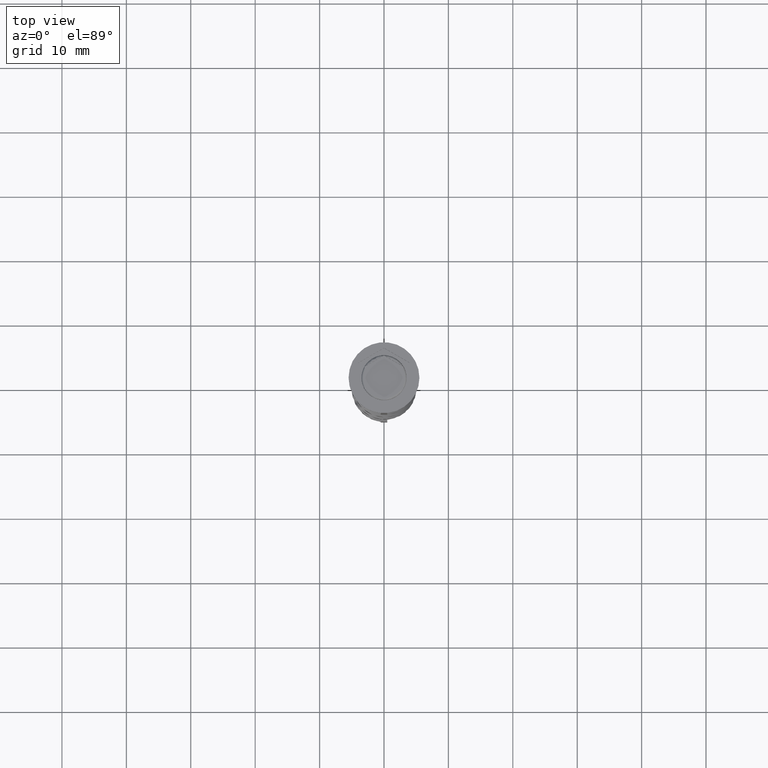
[diagram: clean part render]
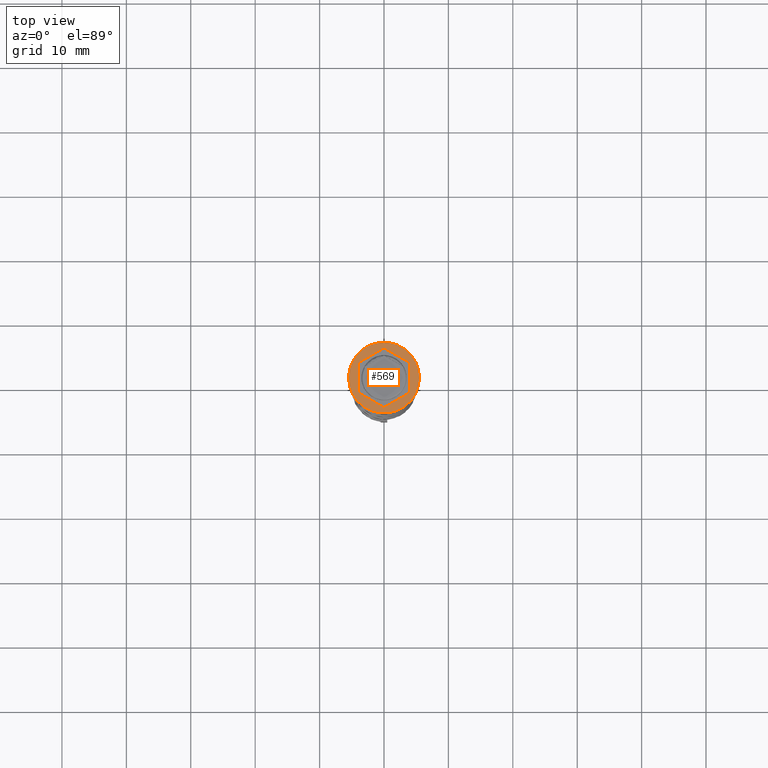
[diagram: same view with one face highlighted and labeled with its STEP entity id]
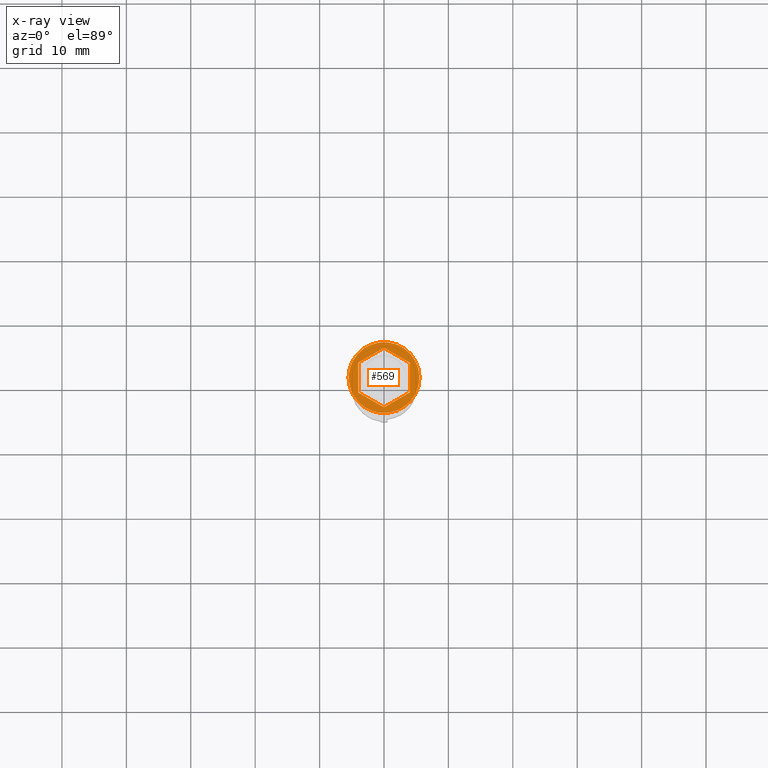
[diagram: x-ray of the same camera — body ghosted, the highlighted face saturated]
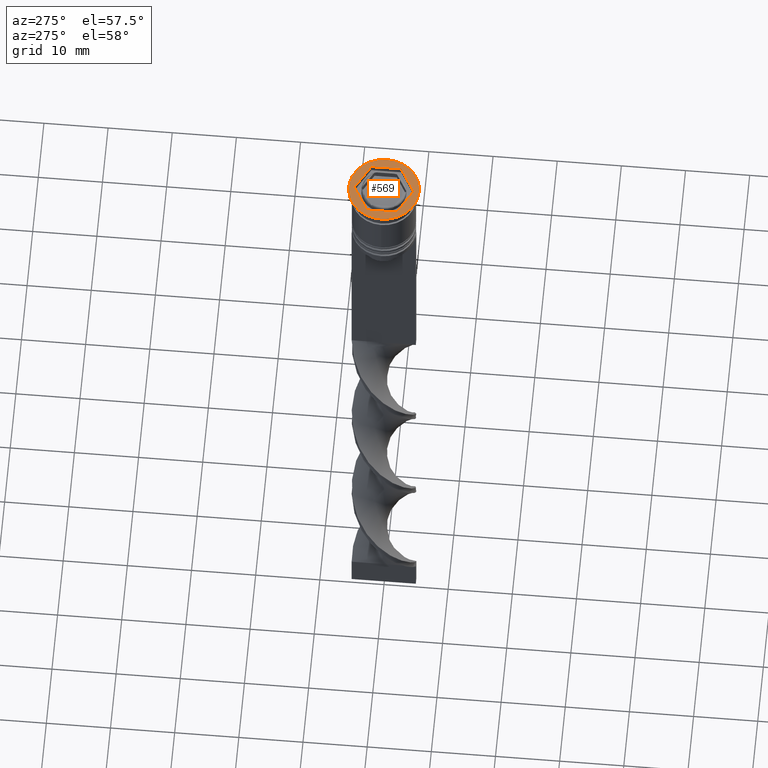
[diagram: same view with one face highlighted and labeled with its STEP entity id]
A machine part, top view. The second image highlights one B-rep face of the part: STEP entity #569.
The next image is the same camera in x-ray: the body ghosted, the highlighted face saturated — about 0% of this face is hidden behind the body in this view.
A second angle (auxiliary view) of the same face is appended — the face is thin or edge-on in the first view.
In plain terms, the highlighted planar face has unit normal (0, -0, 1).
Its self-contained STEP definition (entity closure, byte-faithful):
#25 = DIRECTION ( 'NONE',  ( 0.8660254037844387076, -0.4999999999999999445, 0.000000000000000000 ) ) ;
#39 = EDGE_CURVE ( 'NONE', #1417, #1799, #3682, .T. ) ;
#65 = EDGE_CURVE ( 'NONE', #1799, #1417, #1058, .T. ) ;
#86 = EDGE_LOOP ( 'NONE', ( #3451, #3305 ) ) ;
#89 = LINE ( 'NONE', #277, #361 ) ;
#93 = CARTESIAN_POINT ( 'NONE',  ( 4.000000000000000000, -2.309401076758503368, 0.000000000000000000 ) ) ;
#109 = CARTESIAN_POINT ( 'NONE',  ( 4.000000000000000000, -2.309401076758503368, 0.000000000000000000 ) ) ;
#250 = VECTOR ( 'NONE', #3398, 1000.000000000000227 ) ;
#277 = CARTESIAN_POINT ( 'NONE',  ( 8.729740977282959667E-16, -4.618802153517006737, 0.000000000000000000 ) ) ;
#351 = EDGE_CURVE ( 'NONE', #3447, #642, #3195, .T. ) ;
#361 = VECTOR ( 'NONE', #842, 1000.000000000000227 ) ;
#372 = ORIENTED_EDGE ( 'NONE', *, *, #351, .F. ) ;
#411 = VERTEX_POINT ( 'NONE', #3598 ) ;
#432 = DIRECTION ( 'NONE',  ( 0.000000000000000000, 1.000000000000000000, 0.000000000000000000 ) ) ;
#473 = LINE ( 'NONE', #2727, #3193 ) ;
#496 = EDGE_LOOP ( 'NONE', ( #791, #1699, #2578, #372, #729, #2403 ) ) ;
#500 = LINE ( 'NONE', #837, #663 ) ;
#538 = LINE ( 'NONE', #3112, #250 ) ;
#546 = DIRECTION ( 'NONE',  ( -0.000000000000000000, -0.000000000000000000, 1.000000000000000000 ) ) ;
#569 = ADVANCED_FACE ( 'NONE', ( #1791, #2366 ), #1282, .T. ) ;
#599 = EDGE_CURVE ( 'NONE', #1509, #3474, #2951, .T. ) ;
#642 = VERTEX_POINT ( 'NONE', #2398 ) ;
#663 = VECTOR ( 'NONE', #2805, 1000.000000000000000 ) ;
#690 = DIRECTION ( 'NONE',  ( 1.000000000000000000, 0.000000000000000000, 0.000000000000000000 ) ) ;
#729 = ORIENTED_EDGE ( 'NONE', *, *, #1110, .F. ) ;
#791 = ORIENTED_EDGE ( 'NONE', *, *, #3689, .F. ) ;
#815 = VECTOR ( 'NONE', #25, 1000.000000000000000 ) ;
#837 = CARTESIAN_POINT ( 'NONE',  ( 4.000000000000000000, 2.309401076758503368, 0.000000000000000000 ) ) ;
#842 = DIRECTION ( 'NONE',  ( 0.8660254037844384856, 0.5000000000000001110, 0.000000000000000000 ) ) ;
#876 = DIRECTION ( 'NONE',  ( -0.000000000000000000, -0.000000000000000000, 1.000000000000000000 ) ) ;
#1058 = CIRCLE ( 'NONE', #2668, 5.500000000000000000 ) ;
#1110 = EDGE_CURVE ( 'NONE', #2751, #3447, #473, .T. ) ;
#1267 = DIRECTION ( 'NONE',  ( 0.000000000000000000, -0.000000000000000000, 1.000000000000000000 ) ) ;
#1282 = PLANE ( 'NONE',  #1287 ) ;
#1287 = AXIS2_PLACEMENT_3D ( 'NONE', #1549, #1267, #690 ) ;
#1311 = EDGE_CURVE ( 'NONE', #642, #1509, #89, .T. ) ;
#1312 = DIRECTION ( 'NONE',  ( 0.000000000000000000, -1.000000000000000000, 0.000000000000000000 ) ) ;
#1385 = CARTESIAN_POINT ( 'NONE',  ( 0.000000000000000000, 0.000000000000000000, 0.000000000000000000 ) ) ;
#1417 = VERTEX_POINT ( 'NONE', #2558 ) ;
#1509 = VERTEX_POINT ( 'NONE', #109 ) ;
#1512 = CARTESIAN_POINT ( 'NONE',  ( 4.000000000000000000, 2.309401076758503368, 0.000000000000000000 ) ) ;
#1549 = CARTESIAN_POINT ( 'NONE',  ( 0.000000000000000000, 0.000000000000000000, 0.000000000000000000 ) ) ;
#1699 = ORIENTED_EDGE ( 'NONE', *, *, #599, .F. ) ;
#1791 = FACE_BOUND ( 'NONE', #496, .T. ) ;
#1799 = VERTEX_POINT ( 'NONE', #3110 ) ;
#2054 = CARTESIAN_POINT ( 'NONE',  ( -4.000000000000000000, -2.309401076758503368, 0.000000000000000000 ) ) ;
#2172 = AXIS2_PLACEMENT_3D ( 'NONE', #2261, #876, #3104 ) ;
#2261 = CARTESIAN_POINT ( 'NONE',  ( 0.000000000000000000, 0.000000000000000000, 0.000000000000000000 ) ) ;
#2366 = FACE_OUTER_BOUND ( 'NONE', #86, .T. ) ;
#2398 = CARTESIAN_POINT ( 'NONE',  ( 8.729740977282959667E-16, -4.618802153517006737, 0.000000000000000000 ) ) ;
#2403 = ORIENTED_EDGE ( 'NONE', *, *, #2792, .F. ) ;
#2558 = CARTESIAN_POINT ( 'NONE',  ( 5.500000000000000000, 0.000000000000000000, 0.000000000000000000 ) ) ;
#2578 = ORIENTED_EDGE ( 'NONE', *, *, #1311, .F. ) ;
#2645 = CARTESIAN_POINT ( 'NONE',  ( -4.000000000000000000, -2.309401076758503368, 0.000000000000000000 ) ) ;
#2659 = DIRECTION ( 'NONE',  ( 1.000000000000000000, 0.000000000000000000, 0.000000000000000000 ) ) ;
#2668 = AXIS2_PLACEMENT_3D ( 'NONE', #1385, #546, #2659 ) ;
#2727 = CARTESIAN_POINT ( 'NONE',  ( -4.000000000000000000, 2.309401076758502480, 0.000000000000000000 ) ) ;
#2751 = VERTEX_POINT ( 'NONE', #3022 ) ;
#2792 = EDGE_CURVE ( 'NONE', #411, #2751, #538, .T. ) ;
#2805 = DIRECTION ( 'NONE',  ( -0.8660254037844387076, 0.4999999999999998890, 0.000000000000000000 ) ) ;
#2951 = LINE ( 'NONE', #93, #3543 ) ;
#3022 = CARTESIAN_POINT ( 'NONE',  ( -4.000000000000000000, 2.309401076758502480, 0.000000000000000000 ) ) ;
#3104 = DIRECTION ( 'NONE',  ( 1.000000000000000000, 0.000000000000000000, 0.000000000000000000 ) ) ;
#3110 = CARTESIAN_POINT ( 'NONE',  ( -5.500000000000000000, 6.735557395310442023E-16, 0.000000000000000000 ) ) ;
#3112 = CARTESIAN_POINT ( 'NONE',  ( 0.000000000000000000, 4.618802153517005848, 0.000000000000000000 ) ) ;
#3193 = VECTOR ( 'NONE', #1312, 1000.000000000000000 ) ;
#3195 = LINE ( 'NONE', #2645, #815 ) ;
#3305 = ORIENTED_EDGE ( 'NONE', *, *, #65, .T. ) ;
#3398 = DIRECTION ( 'NONE',  ( -0.8660254037844385966, -0.5000000000000000000, 0.000000000000000000 ) ) ;
#3447 = VERTEX_POINT ( 'NONE', #2054 ) ;
#3451 = ORIENTED_EDGE ( 'NONE', *, *, #39, .T. ) ;
#3474 = VERTEX_POINT ( 'NONE', #1512 ) ;
#3543 = VECTOR ( 'NONE', #432, 1000.000000000000000 ) ;
#3598 = CARTESIAN_POINT ( 'NONE',  ( 0.000000000000000000, 4.618802153517005848, 0.000000000000000000 ) ) ;
#3682 = CIRCLE ( 'NONE', #2172, 5.500000000000000000 ) ;
#3689 = EDGE_CURVE ( 'NONE', #3474, #411, #500, .T. ) ;